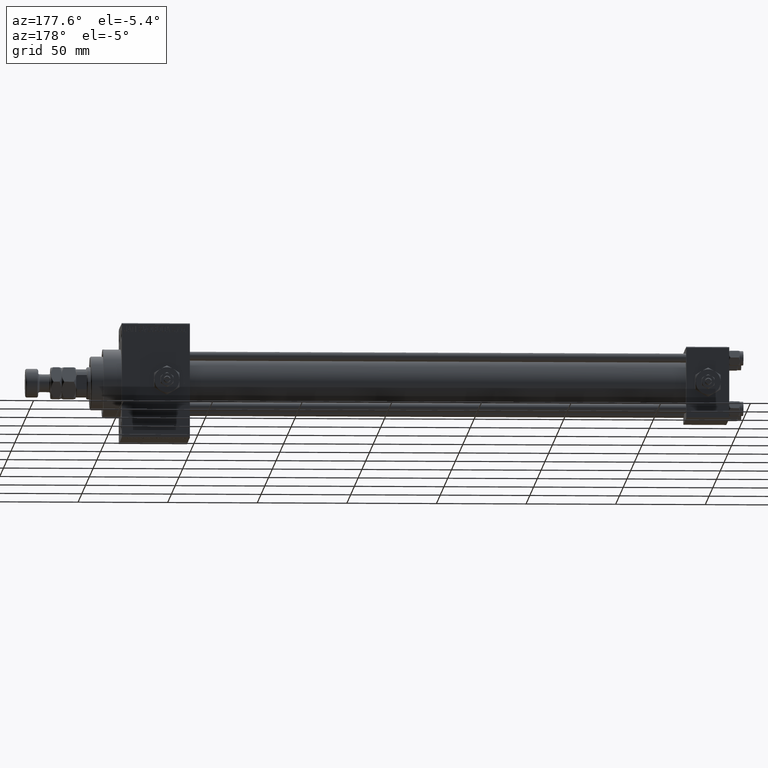
[diagram: clean part render]
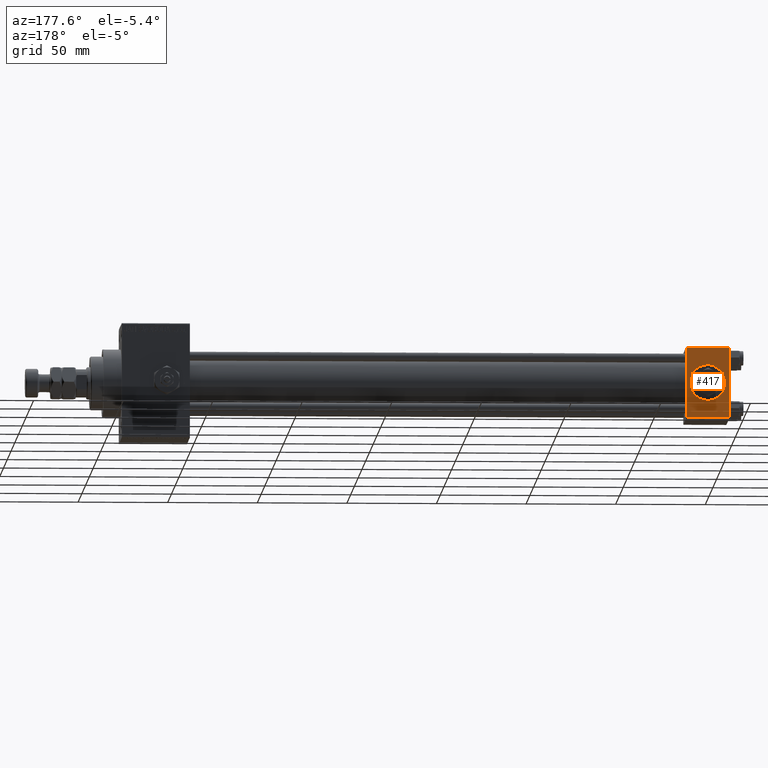
[diagram: same view with one face highlighted and labeled with its STEP entity id]
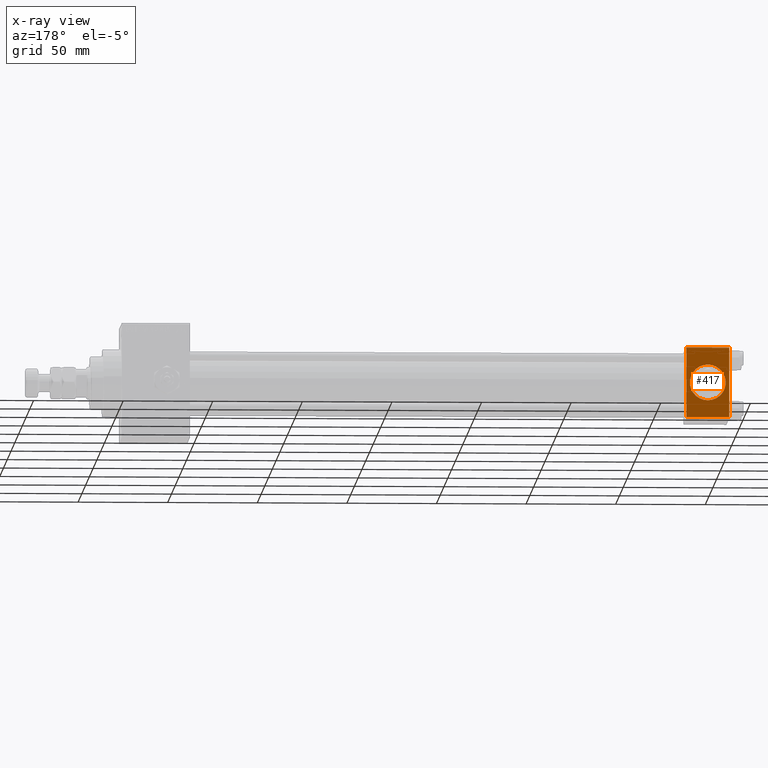
[diagram: x-ray of the same camera — body ghosted, the highlighted face saturated]
A machine part, auxiliary view. The second image highlights one B-rep face of the part: STEP entity #417.
The next image is the same camera in x-ray: the body ghosted, the highlighted face saturated — about 0% of this face is hidden behind the body in this view.
In plain terms, the highlighted planar face has unit normal (0, 1, 0).
Its self-contained STEP definition (entity closure, byte-faithful):
#417 = ADVANCED_FACE ( 'NONE', ( #43500, #28632 ), #28121, .T. ) ;
#1768 = CARTESIAN_POINT ( 'NONE',  ( 12.00000000000000000, 20.00000000000000000, 0.000000000000000000 ) ) ;
#2142 = CARTESIAN_POINT ( 'NONE',  ( 0.000000000000000000, 20.00000000000000000, 19.49999999999999289 ) ) ;
#3118 = LINE ( 'NONE', #23624, #34968 ) ;
#4578 = ORIENTED_EDGE ( 'NONE', *, *, #49861, .F. ) ;
#5568 = EDGE_CURVE ( 'NONE', #45830, #8980, #10885, .T. ) ;
#5634 = DIRECTION ( 'NONE',  ( 0.000000000000000000, 1.000000000000000000, 0.000000000000000000 ) ) ;
#7827 = CARTESIAN_POINT ( 'NONE',  ( 24.00000000000000000, 20.00000000000000000, -19.50000000000002132 ) ) ;
#8128 = EDGE_LOOP ( 'NONE', ( #14876, #4578 ) ) ;
#8382 = DIRECTION ( 'NONE',  ( 0.000000000000000000, -0.000000000000000000, 1.000000000000000000 ) ) ;
#8980 = VERTEX_POINT ( 'NONE', #10516 ) ;
#9137 = DIRECTION ( 'NONE',  ( -0.000000000000000000, 1.000000000000000000, 0.000000000000000000 ) ) ;
#10516 = CARTESIAN_POINT ( 'NONE',  ( 12.00000000000000178, 20.00000000000000000, -10.00000000000000000 ) ) ;
#10563 = VECTOR ( 'NONE', #43772, 1000.000000000000000 ) ;
#10885 = CIRCLE ( 'NONE', #23984, 10.00000000000000000 ) ;
#14554 = ORIENTED_EDGE ( 'NONE', *, *, #36547, .F. ) ;
#14629 = VERTEX_POINT ( 'NONE', #7827 ) ;
#14876 = ORIENTED_EDGE ( 'NONE', *, *, #5568, .F. ) ;
#15015 = CARTESIAN_POINT ( 'NONE',  ( 0.000000000000000000, 20.00000000000000000, -19.50000000000002132 ) ) ;
#15933 = DIRECTION ( 'NONE',  ( 0.000000000000000000, 0.000000000000000000, -1.000000000000000000 ) ) ;
#17630 = VECTOR ( 'NONE', #50058, 1000.000000000000000 ) ;
#18361 = CARTESIAN_POINT ( 'NONE',  ( 12.00000000000000000, 20.00000000000000000, 10.00000000000000000 ) ) ;
#20188 = LINE ( 'NONE', #36080, #10563 ) ;
#20923 = ORIENTED_EDGE ( 'NONE', *, *, #44838, .T. ) ;
#21582 = ORIENTED_EDGE ( 'NONE', *, *, #45234, .T. ) ;
#23624 = CARTESIAN_POINT ( 'NONE',  ( 0.000000000000000000, 20.00000000000000000, 20.00000000000000000 ) ) ;
#23712 = VECTOR ( 'NONE', #37774, 1000.000000000000000 ) ;
#23850 = ORIENTED_EDGE ( 'NONE', *, *, #33307, .T. ) ;
#23984 = AXIS2_PLACEMENT_3D ( 'NONE', #1768, #5634, #48963 ) ;
#24189 = DIRECTION ( 'NONE',  ( 0.000000000000000000, 0.000000000000000000, 1.000000000000000000 ) ) ;
#25092 = CIRCLE ( 'NONE', #35752, 10.00000000000000000 ) ;
#26505 = VERTEX_POINT ( 'NONE', #15015 ) ;
#26754 = LINE ( 'NONE', #49562, #23712 ) ;
#27533 = DIRECTION ( 'NONE',  ( 0.000000000000000000, 1.000000000000000000, 0.000000000000000000 ) ) ;
#27677 = EDGE_LOOP ( 'NONE', ( #23850, #20923, #14554, #21582 ) ) ;
#27786 = CARTESIAN_POINT ( 'NONE',  ( 12.00000000000000000, 20.00000000000000000, 0.000000000000000000 ) ) ;
#28121 = PLANE ( 'NONE',  #36113 ) ;
#28375 = CARTESIAN_POINT ( 'NONE',  ( 24.00000000000000000, 20.00000000000000000, 20.00000000000000000 ) ) ;
#28475 = VERTEX_POINT ( 'NONE', #49575 ) ;
#28632 = FACE_OUTER_BOUND ( 'NONE', #27677, .T. ) ;
#30843 = LINE ( 'NONE', #38527, #17630 ) ;
#33307 = EDGE_CURVE ( 'NONE', #28475, #14629, #30843, .T. ) ;
#34968 = VECTOR ( 'NONE', #15933, 1000.000000000000000 ) ;
#35752 = AXIS2_PLACEMENT_3D ( 'NONE', #27786, #27533, #24189 ) ;
#36080 = CARTESIAN_POINT ( 'NONE',  ( 24.00000000000000000, 20.00000000000000000, -19.50000000000002132 ) ) ;
#36113 = AXIS2_PLACEMENT_3D ( 'NONE', #28375, #9137, #8382 ) ;
#36547 = EDGE_CURVE ( 'NONE', #48655, #26505, #3118, .T. ) ;
#37774 = DIRECTION ( 'NONE',  ( 1.000000000000000000, 0.000000000000000000, 0.000000000000000000 ) ) ;
#38527 = CARTESIAN_POINT ( 'NONE',  ( 24.00000000000000000, 20.00000000000000000, 20.00000000000000000 ) ) ;
#43500 = FACE_BOUND ( 'NONE', #8128, .T. ) ;
#43772 = DIRECTION ( 'NONE',  ( -1.000000000000000000, 0.000000000000000000, 0.000000000000000000 ) ) ;
#44838 = EDGE_CURVE ( 'NONE', #14629, #26505, #20188, .T. ) ;
#45234 = EDGE_CURVE ( 'NONE', #48655, #28475, #26754, .T. ) ;
#45830 = VERTEX_POINT ( 'NONE', #18361 ) ;
#48655 = VERTEX_POINT ( 'NONE', #2142 ) ;
#48963 = DIRECTION ( 'NONE',  ( 0.000000000000000000, 0.000000000000000000, 1.000000000000000000 ) ) ;
#49562 = CARTESIAN_POINT ( 'NONE',  ( 24.00000000000000000, 20.00000000000000000, 19.49999999999999289 ) ) ;
#49575 = CARTESIAN_POINT ( 'NONE',  ( 24.00000000000000000, 20.00000000000000000, 19.49999999999999289 ) ) ;
#49861 = EDGE_CURVE ( 'NONE', #8980, #45830, #25092, .T. ) ;
#50058 = DIRECTION ( 'NONE',  ( 0.000000000000000000, 0.000000000000000000, -1.000000000000000000 ) ) ;